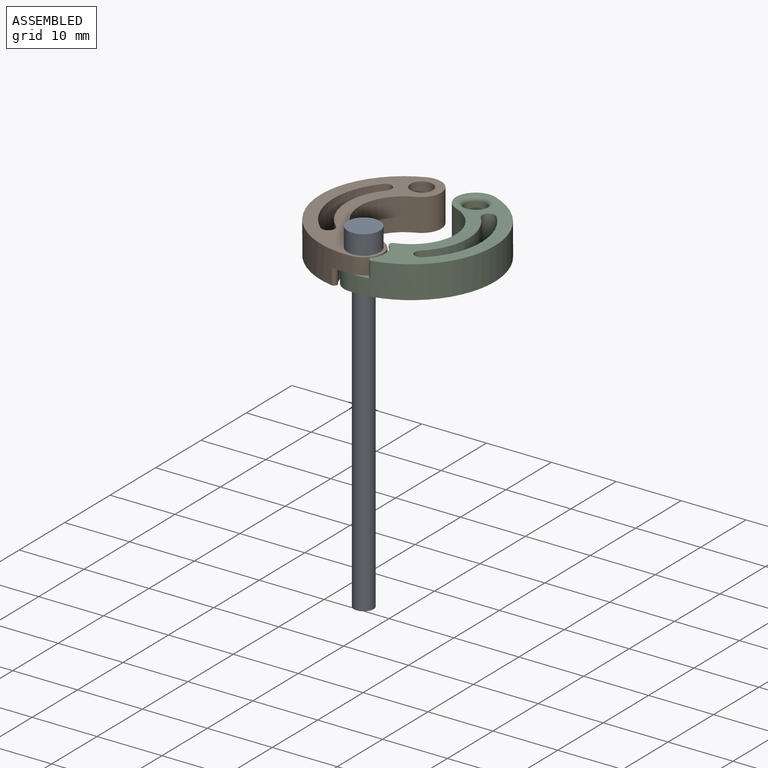
[diagram: assembled view]
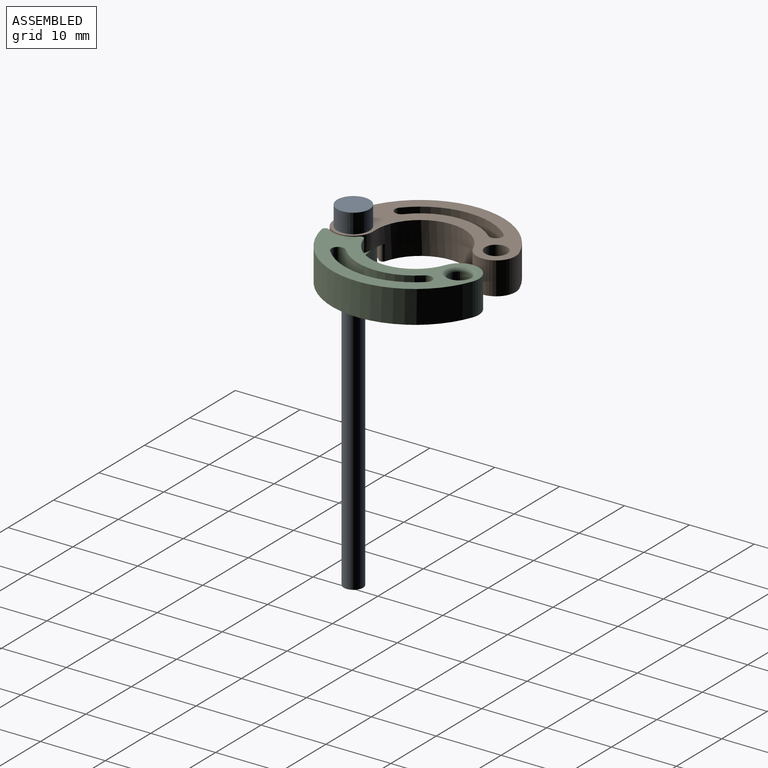
[diagram: assembled view, second angle]
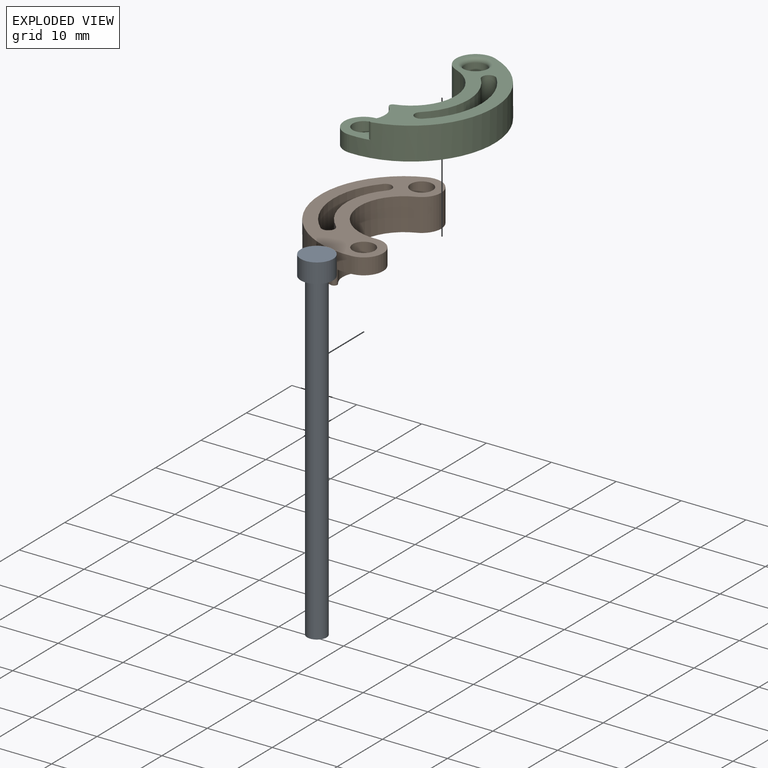
[diagram: exploded view]
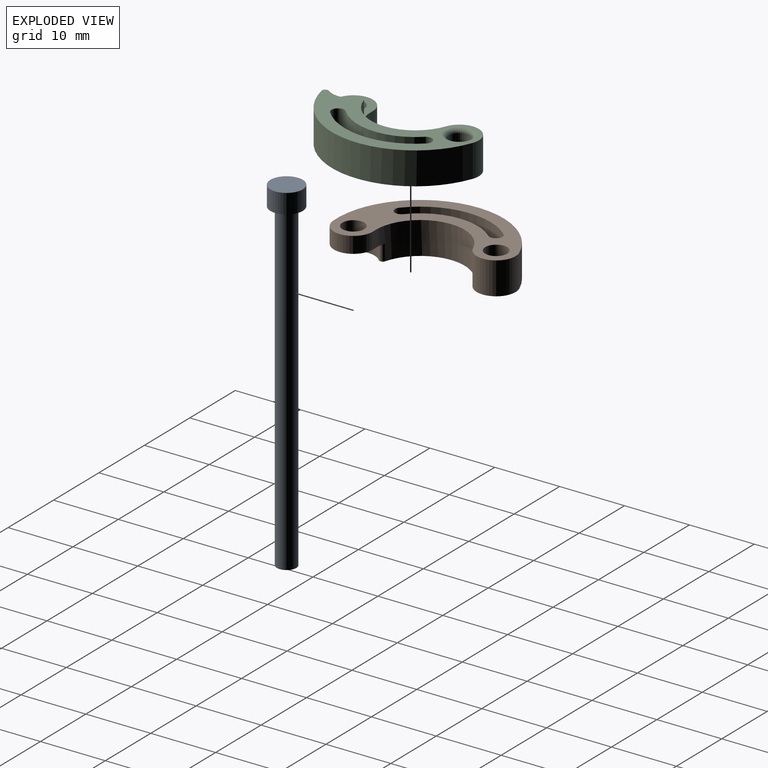
[diagram: exploded view, second angle]
ASSEMBLY  parts=3 mates=2
PART A: 5 faces, bbox 5x5x53 mm
  f0: cylinder r=1.5mm len=50mm, axis (0,0,1), area 471.2mm2, adj f1,f4
  f1: plane 3x3mm, normal (0,0,-1), area 7.1mm2, adj f0
  f2: cylinder r=2.5mm len=5mm, axis (0,0,-1), area 47.1mm2, adj f3,f4
  f3: plane 5x5mm, normal (0,0,1), area 19.6mm2, adj f2
  f4: plane 5x5mm, normal (0,0,-1), area 12.6mm2, adj f0,f2
PART B: 17 faces, bbox 15.9x25.2x5 mm
  f0: cylinder r=1.7mm len=3.4mm, axis (0,0,-1), area 26.7mm2, adj f11,f13
  f1: cylinder r=3mm len=6mm, axis (0,0,-1), area 23.6mm2, adj f6,f8,f11,f13
  f2: plane 24.82x12.81mm, normal (0,0,-1), area 113.6mm2, adj f3,f4,f5,f6,f7,f8,f10,f12
  f3: cylinder r=1mm len=5mm, axis (0,0,-1), area 15.7mm2, adj f2,f4,f10,f11
  f4: cylinder r=8.85mm len=12.52mm, axis (0,0,-1), area 69.5mm2, adj f2,f3,f5,f11
  f5: cylinder r=1mm len=5mm, axis (0,0,-1), area 15.7mm2, adj f2,f4,f10,f11
  f6: cylinder r=6.85mm len=13.36mm, axis (0,0,-1), area 91.2mm2, adj f1,f2,f7,f11,f13,f14
  f7: cylinder r=3mm len=5.85mm, axis (0,0,-1), area 47.1mm2, adj f2,f6,f8,f11
  f8: cylinder r=12.85mm len=25.07mm, axis (0,0,-1), area 173.5mm2, adj f1,f2,f7,f11,f13,f15
  f9: cylinder r=1.7mm len=4.4mm, axis (0,0,-1), area 47mm2, adj f11,f16
  f10: cylinder r=10.85mm len=15.34mm, axis (0,0,-1), area 85.2mm2, adj f2,f3,f5,f11
  f11: plane 25.22x15.85mm, normal (0,0,1), area 143.1mm2, adj f0,f1,f3,f4,f5,f6,f7,f8
  f12: cylinder r=3.25mm len=4.33mm, axis (0,0,-1), area 12mm2, adj f2,f13,f14,f15
  f13: plane 6.37x6.25mm, normal (0,0,-1), area 22mm2, adj f0,f1,f6,f8,f12,f14,f15
  f14: cylinder r=0.5mm len=2.5mm, axis (0,0,1), area 2.7mm2, adj f2,f6,f12,f13
  f15: cylinder r=0.5mm len=2.5mm, axis (0,0,-1), area 3mm2, adj f2,f8,f12,f13
  f16: torus R=2.3mm, axis (0,0,1), area 11.4mm2, adj f2,f9
PART C: same geometry as B
PLACE A t=(-0.04,10.06,0.24)mm fixed
PLACE B rot(axis=(0,0,1),3.9deg) t=(-0.71,10.03,0.24)mm
PLACE C rot(axis=(-0.02,-1,0),180deg) t=(0.4,10.05,5.24)mm
MATE revolute B.f0 <-> C.f0  axis (0,0,-1) through (-0.04,0.21,2.74)mm
MATE revolute A.f0 <-> B.f0  axis (0,0,1) through (-0.04,0.21,5.24)mm
